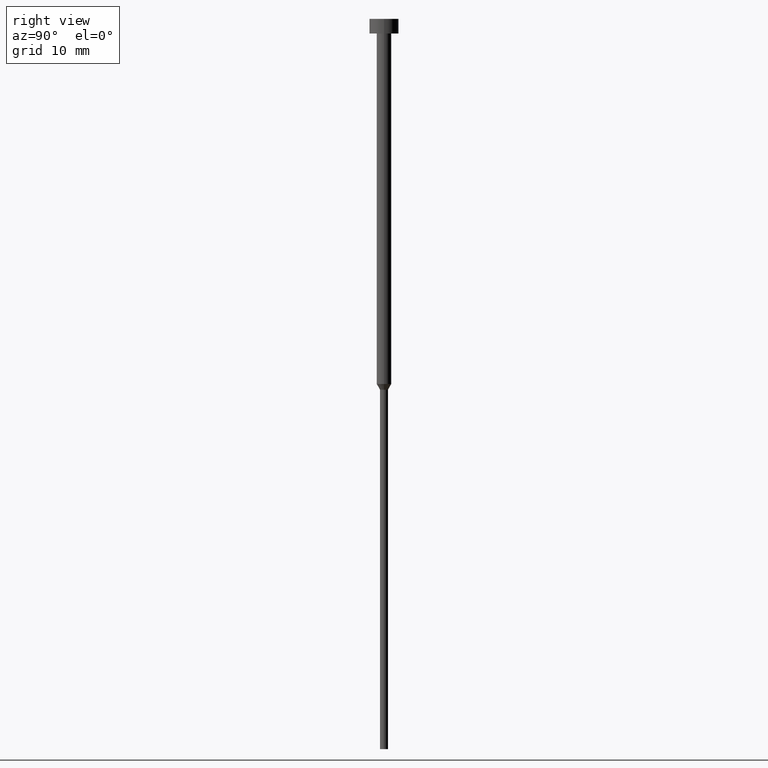
[diagram: clean part render]
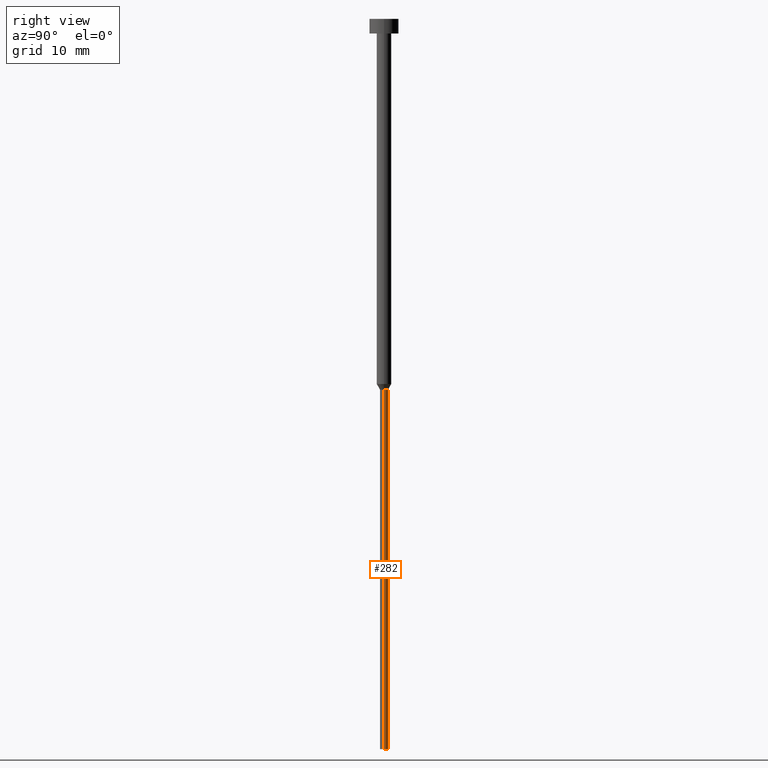
[diagram: same view with one face highlighted and labeled with its STEP entity id]
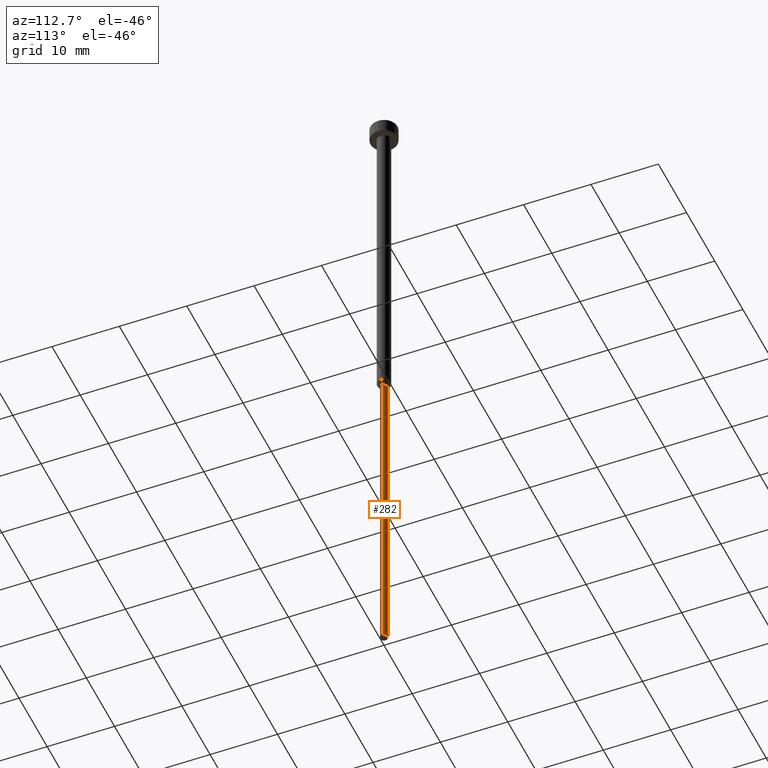
[diagram: same view with one face highlighted and labeled with its STEP entity id]
A machine part, right view. The second image highlights one B-rep face of the part: STEP entity #282.
A second angle (auxiliary view) of the same face is appended — the face is thin or edge-on in the first view.
In plain terms, the highlighted cylindrical surface (edge-blend (fillet) strip) has radius 0.55 mm, axis along (-0, -0, 1).
Its self-contained STEP definition (entity closure, byte-faithful):
#6 = DIRECTION ( 'NONE',  ( 1.000000000000000000, 0.000000000000000000, 0.000000000000000000 ) ) ;
#8 = CARTESIAN_POINT ( 'NONE',  ( 0.000000000000000000, 0.000000000000000000, -50.77942286340599765 ) ) ;
#12 = AXIS2_PLACEMENT_3D ( 'NONE', #329, #80, #202 ) ;
#21 = CIRCLE ( 'NONE', #251, 0.5500000000000000444 ) ;
#23 = CYLINDRICAL_SURFACE ( 'NONE', #12, 0.5499999999999999334 ) ;
#28 = LINE ( 'NONE', #115, #163 ) ;
#46 = EDGE_CURVE ( 'NONE', #301, #250, #199, .T. ) ;
#51 = FACE_OUTER_BOUND ( 'NONE', #197, .T. ) ;
#55 = VERTEX_POINT ( 'NONE', #219 ) ;
#70 = DIRECTION ( 'NONE',  ( 1.000000000000000000, 0.000000000000000000, 0.000000000000000000 ) ) ;
#80 = DIRECTION ( 'NONE',  ( -0.000000000000000000, -0.000000000000000000, 1.000000000000000000 ) ) ;
#94 = DIRECTION ( 'NONE',  ( -0.000000000000000000, -0.000000000000000000, 1.000000000000000000 ) ) ;
#108 = DIRECTION ( 'NONE',  ( -0.000000000000000000, -0.000000000000000000, 1.000000000000000000 ) ) ;
#115 = CARTESIAN_POINT ( 'NONE',  ( 0.5499999999999999334, 0.000000000000000000, 0.000000000000000000 ) ) ;
#118 = DIRECTION ( 'NONE',  ( -0.000000000000000000, -0.000000000000000000, 1.000000000000000000 ) ) ;
#130 = EDGE_CURVE ( 'NONE', #250, #173, #254, .T. ) ;
#152 = CARTESIAN_POINT ( 'NONE',  ( -0.5500000000000000444, 6.735557395310442516E-17, -50.77942286340599765 ) ) ;
#163 = VECTOR ( 'NONE', #227, 1000.000000000000000 ) ;
#167 = ORIENTED_EDGE ( 'NONE', *, *, #288, .F. ) ;
#173 = VERTEX_POINT ( 'NONE', #152 ) ;
#188 = VECTOR ( 'NONE', #118, 1000.000000000000000 ) ;
#193 = CARTESIAN_POINT ( 'NONE',  ( -0.5499999999999999334, 6.735557395310441284E-17, -100.0000000000000000 ) ) ;
#197 = EDGE_LOOP ( 'NONE', ( #269, #331, #225, #167 ) ) ;
#199 = CIRCLE ( 'NONE', #256, 0.5499999999999999334 ) ;
#202 = DIRECTION ( 'NONE',  ( 1.000000000000000000, 0.000000000000000000, 0.000000000000000000 ) ) ;
#219 = CARTESIAN_POINT ( 'NONE',  ( 0.5500000000000000444, 0.000000000000000000, -50.77942286340599765 ) ) ;
#220 = CARTESIAN_POINT ( 'NONE',  ( 0.000000000000000000, 0.000000000000000000, -100.0000000000000000 ) ) ;
#225 = ORIENTED_EDGE ( 'NONE', *, *, #348, .F. ) ;
#227 = DIRECTION ( 'NONE',  ( -0.000000000000000000, -0.000000000000000000, 1.000000000000000000 ) ) ;
#250 = VERTEX_POINT ( 'NONE', #193 ) ;
#251 = AXIS2_PLACEMENT_3D ( 'NONE', #8, #94, #6 ) ;
#254 = LINE ( 'NONE', #275, #188 ) ;
#256 = AXIS2_PLACEMENT_3D ( 'NONE', #220, #108, #70 ) ;
#259 = CARTESIAN_POINT ( 'NONE',  ( 0.5499999999999999334, 0.000000000000000000, -100.0000000000000000 ) ) ;
#269 = ORIENTED_EDGE ( 'NONE', *, *, #46, .T. ) ;
#275 = CARTESIAN_POINT ( 'NONE',  ( -0.5499999999999999334, 6.735557395310441284E-17, 0.000000000000000000 ) ) ;
#282 = ADVANCED_FACE ( 'NONE', ( #51 ), #23, .T. ) ;
#288 = EDGE_CURVE ( 'NONE', #301, #55, #28, .T. ) ;
#301 = VERTEX_POINT ( 'NONE', #259 ) ;
#329 = CARTESIAN_POINT ( 'NONE',  ( 0.000000000000000000, 0.000000000000000000, 0.000000000000000000 ) ) ;
#331 = ORIENTED_EDGE ( 'NONE', *, *, #130, .T. ) ;
#348 = EDGE_CURVE ( 'NONE', #55, #173, #21, .T. ) ;